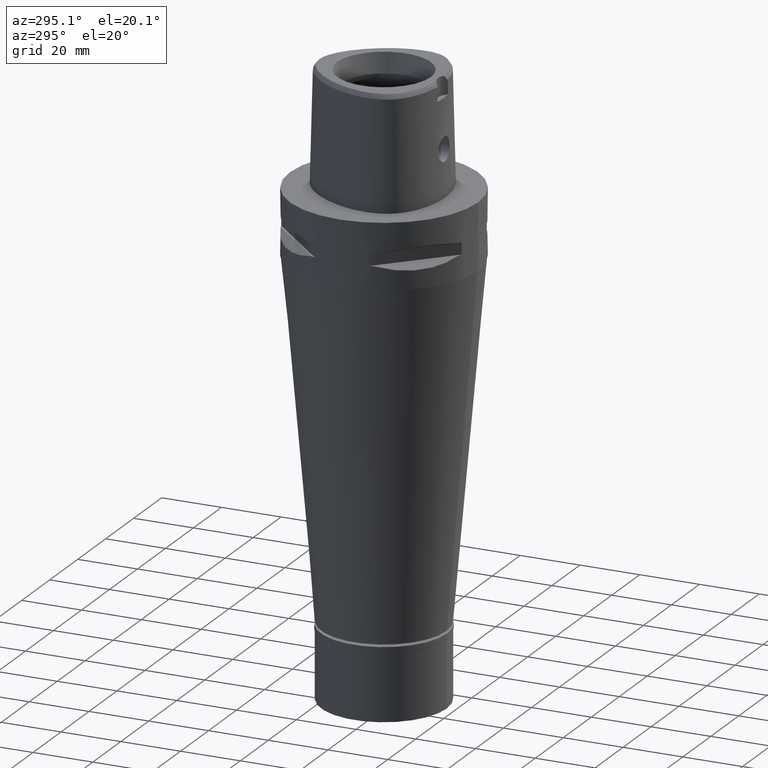
[diagram: clean part render]
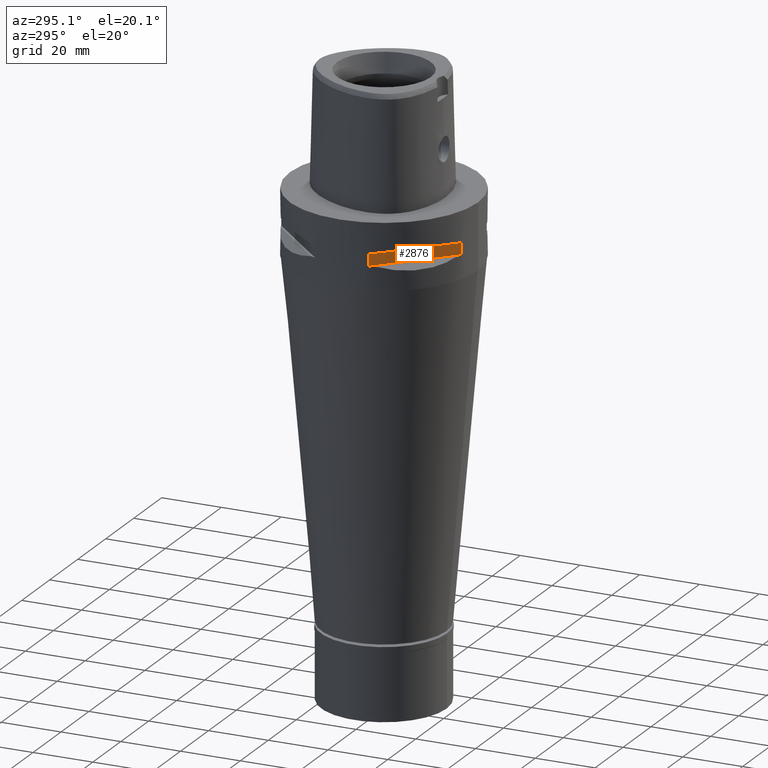
[diagram: same view with one face highlighted and labeled with its STEP entity id]
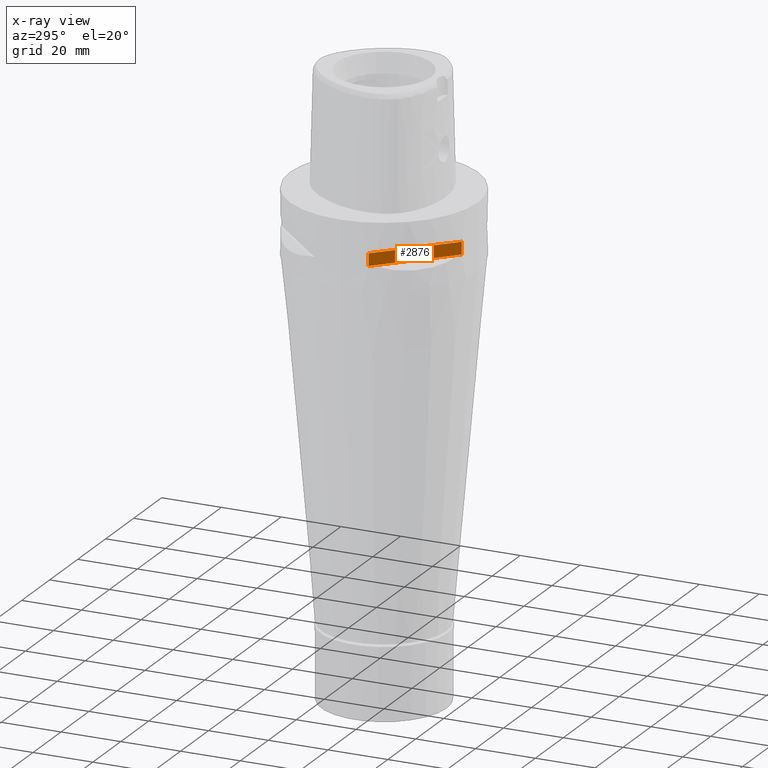
[diagram: x-ray of the same camera — body ghosted, the highlighted face saturated]
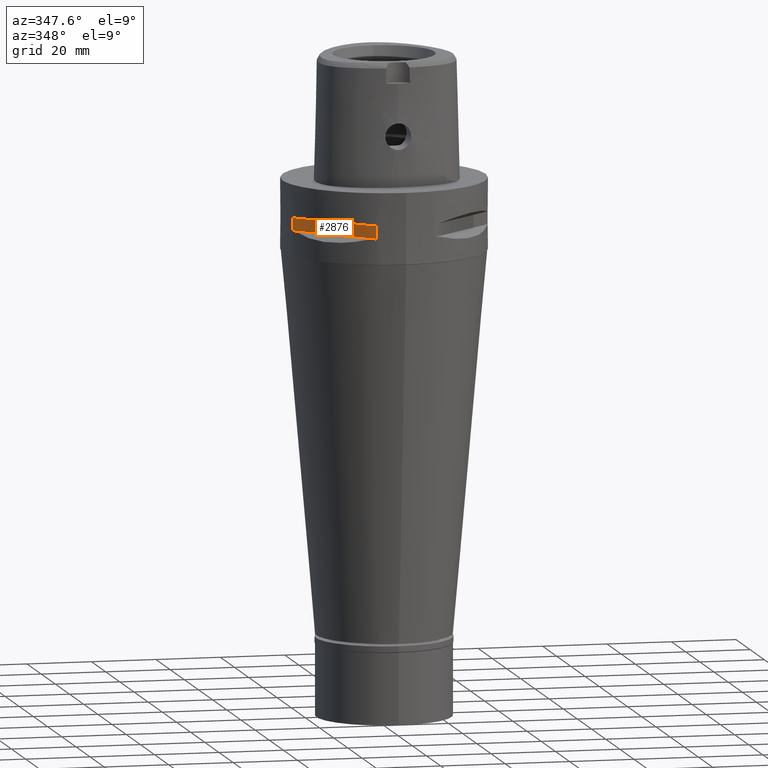
[diagram: same view with one face highlighted and labeled with its STEP entity id]
A machine part, auxiliary view. The second image highlights one B-rep face of the part: STEP entity #2876.
The next image is the same camera in x-ray: the body ghosted, the highlighted face saturated — about 0% of this face is hidden behind the body in this view.
A second angle (auxiliary view) of the same face is appended — the face is thin or edge-on in the first view.
In plain terms, the highlighted planar face has unit normal (0.7071, 0.7071, 0).
Its self-contained STEP definition (entity closure, byte-faithful):
#359 = ORIENTED_EDGE ( 'NONE', *, *, #2489, .F. ) ;
#459 = CARTESIAN_POINT ( 'NONE',  ( -30.19251670572000279, -8.981198972017999438, -14.05000000000000071 ) ) ;
#570 = CARTESIAN_POINT ( 'NONE',  ( -8.981198972017999438, -30.19251670572000279, -9.950000000000001066 ) ) ;
#794 = ORIENTED_EDGE ( 'NONE', *, *, #1740, .T. ) ;
#860 = DIRECTION ( 'NONE',  ( 0.7071067811865475727, 0.7071067811865475727, 0.0000000000000000000 ) ) ;
#990 = VECTOR ( 'NONE', #2565, 1000.000000000000114 ) ;
#1119 = ORIENTED_EDGE ( 'NONE', *, *, #3469, .T. ) ;
#1143 = CARTESIAN_POINT ( 'NONE',  ( -30.19251670572000279, -8.981198972017999438, -14.05000000000000071 ) ) ;
#1157 = VECTOR ( 'NONE', #2820, 1000.000000000000000 ) ;
#1200 = DIRECTION ( 'NONE',  ( 0.0000000000000000000, 0.0000000000000000000, -1.000000000000000000 ) ) ;
#1325 = CARTESIAN_POINT ( 'NONE',  ( -30.19251670572000279, -8.981198972017999438, -9.950000000000001066 ) ) ;
#1372 = LINE ( 'NONE', #3214, #1157 ) ;
#1591 = VERTEX_POINT ( 'NONE', #459 ) ;
#1649 = AXIS2_PLACEMENT_3D ( 'NONE', #2801, #860, #1200 ) ;
#1740 = EDGE_CURVE ( 'NONE', #2030, #1591, #1372, .T. ) ;
#1773 = LINE ( 'NONE', #1325, #990 ) ;
#1824 = DIRECTION ( 'NONE',  ( 0.7071067811865474617, -0.7071067811865474617, 0.0000000000000000000 ) ) ;
#2005 = CARTESIAN_POINT ( 'NONE',  ( -8.981198972019999616, -30.19251670572000279, -14.05000000000000071 ) ) ;
#2030 = VERTEX_POINT ( 'NONE', #4250 ) ;
#2099 = DIRECTION ( 'NONE',  ( 0.0000000000000000000, 0.0000000000000000000, 1.000000000000000000 ) ) ;
#2267 = EDGE_LOOP ( 'NONE', ( #359, #794, #4866, #1119 ) ) ;
#2439 = PLANE ( 'NONE',  #1649 ) ;
#2489 = EDGE_CURVE ( 'NONE', #2030, #4400, #1773, .T. ) ;
#2543 = VECTOR ( 'NONE', #2099, 1000.000000000000000 ) ;
#2565 = DIRECTION ( 'NONE',  ( 0.7071067811865474617, -0.7071067811865474617, 0.0000000000000000000 ) ) ;
#2636 = EDGE_CURVE ( 'NONE', #1591, #3272, #3055, .T. ) ;
#2801 = CARTESIAN_POINT ( 'NONE',  ( -5.444722215136000187, -33.72899346260000186, -9.950000000000001066 ) ) ;
#2820 = DIRECTION ( 'NONE',  ( 0.0000000000000000000, 0.0000000000000000000, -1.000000000000000000 ) ) ;
#2876 = ADVANCED_FACE ( 'NONE', ( #3164 ), #2439, .F. ) ;
#3055 = LINE ( 'NONE', #1143, #3689 ) ;
#3164 = FACE_OUTER_BOUND ( 'NONE', #2267, .T. ) ;
#3214 = CARTESIAN_POINT ( 'NONE',  ( -30.19251670572000279, -8.981198972017999438, -9.950000000000001066 ) ) ;
#3264 = CARTESIAN_POINT ( 'NONE',  ( -8.981198972017999438, -30.19251670572000279, -14.05000000000000071 ) ) ;
#3272 = VERTEX_POINT ( 'NONE', #2005 ) ;
#3469 = EDGE_CURVE ( 'NONE', #3272, #4400, #4039, .T. ) ;
#3689 = VECTOR ( 'NONE', #1824, 1000.000000000000114 ) ;
#4039 = LINE ( 'NONE', #3264, #2543 ) ;
#4250 = CARTESIAN_POINT ( 'NONE',  ( -30.19251670572000279, -8.981198972019999616, -9.950000000000001066 ) ) ;
#4400 = VERTEX_POINT ( 'NONE', #570 ) ;
#4866 = ORIENTED_EDGE ( 'NONE', *, *, #2636, .T. ) ;